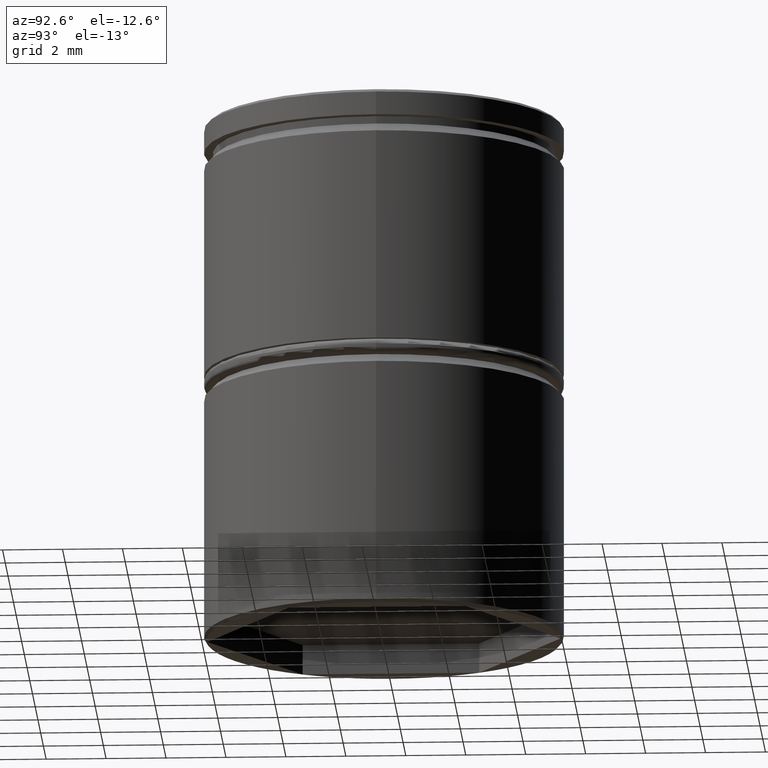
[diagram: clean part render]
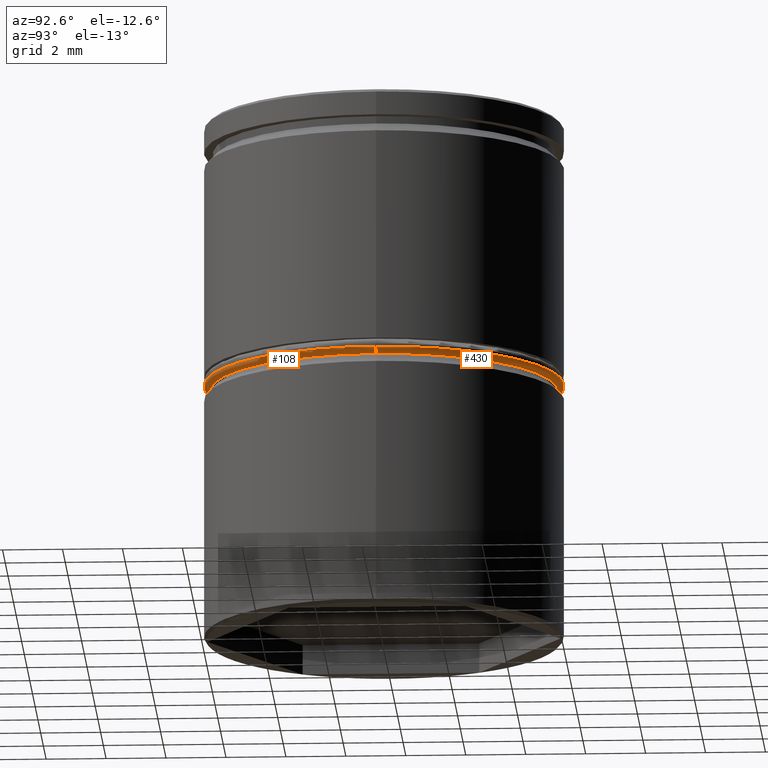
[diagram: same view with one multi-face feature highlighted, each face labeled with its STEP entity id]
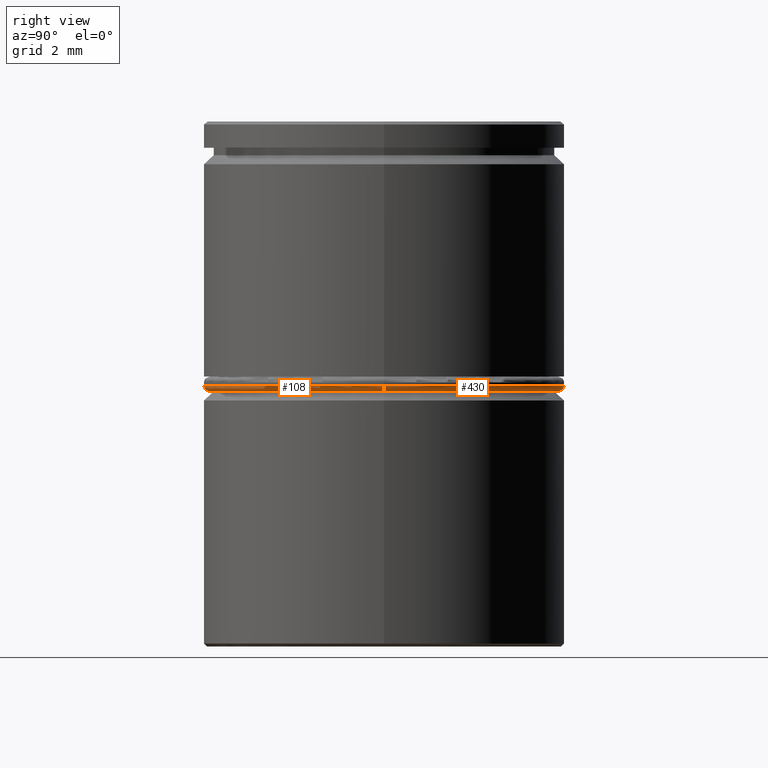
[diagram: same view with one multi-face feature highlighted, each face labeled with its STEP entity id]
A machine part, auxiliary view. The highlighted faces form ONE feature: a constant-radius fillet chain: 2 tangent blend faces with common blend radius 0.2 mm. The faces share edges in the B-rep.
A second angle (right view) of the same feature is appended — it is thin or edge-on in the first view.
Their STEP definitions:
[1] entity #430 (Torus):
#10 = CIRCLE ( 'NONE', #310, 0.1999999999999996503 ) ;
#13 = CARTESIAN_POINT ( 'NONE',  ( 0.000000000000000000, 0.000000000000000000, -8.800000000000002487 ) ) ;
#19 = ORIENTED_EDGE ( 'NONE', *, *, #631, .F. ) ;
#27 = AXIS2_PLACEMENT_3D ( 'NONE', #13, #400, #337 ) ;
#98 = EDGE_LOOP ( 'NONE', ( #19, #275, #368, #883 ) ) ;
#105 = FACE_OUTER_BOUND ( 'NONE', #98, .T. ) ;
#167 = CARTESIAN_POINT ( 'NONE',  ( 5.800000000000001599, 0.000000000000000000, -9.000000000000001776 ) ) ;
#275 = ORIENTED_EDGE ( 'NONE', *, *, #761, .T. ) ;
#280 = CARTESIAN_POINT ( 'NONE',  ( 6.000000000000000888, 0.000000000000000000, -8.800000000000002487 ) ) ;
#286 = CIRCLE ( 'NONE', #27, 6.000000000000000888 ) ;
#289 = DIRECTION ( 'NONE',  ( 1.000000000000000000, 0.000000000000000000, 0.000000000000000000 ) ) ;
#302 = CIRCLE ( 'NONE', #410, 5.800000000000001599 ) ;
#310 = AXIS2_PLACEMENT_3D ( 'NONE', #646, #502, #574 ) ;
#319 = CARTESIAN_POINT ( 'NONE',  ( 0.000000000000000000, 0.000000000000000000, -9.000000000000001776 ) ) ;
#331 = VERTEX_POINT ( 'NONE', #167 ) ;
#337 = DIRECTION ( 'NONE',  ( 1.000000000000000000, 0.000000000000000000, 0.000000000000000000 ) ) ;
#368 = ORIENTED_EDGE ( 'NONE', *, *, #389, .F. ) ;
#389 = EDGE_CURVE ( 'NONE', #496, #752, #286, .T. ) ;
#390 = AXIS2_PLACEMENT_3D ( 'NONE', #756, #815, #289 ) ;
#391 = VERTEX_POINT ( 'NONE', #966 ) ;
#400 = DIRECTION ( 'NONE',  ( 0.000000000000000000, 0.000000000000000000, 1.000000000000000000 ) ) ;
#403 = CIRCLE ( 'NONE', #994, 0.2000000000000005107 ) ;
#410 = AXIS2_PLACEMENT_3D ( 'NONE', #319, #634, #950 ) ;
#430 = ADVANCED_FACE ( 'NONE', ( #105 ), #643, .T. ) ;
#496 = VERTEX_POINT ( 'NONE', #280 ) ;
#502 = DIRECTION ( 'NONE',  ( 1.224646799147353207E-16, 1.000000000000000000, -0.000000000000000000 ) ) ;
#537 = DIRECTION ( 'NONE',  ( 0.000000000000000000, -1.000000000000000000, 0.000000000000000000 ) ) ;
#574 = DIRECTION ( 'NONE',  ( -1.000000000000000000, 1.224646799147353454E-16, 0.000000000000000000 ) ) ;
#631 = EDGE_CURVE ( 'NONE', #391, #331, #302, .T. ) ;
#634 = DIRECTION ( 'NONE',  ( -0.000000000000000000, -0.000000000000000000, -1.000000000000000000 ) ) ;
#643 = TOROIDAL_SURFACE ( 'NONE', #390, 5.800000000000001599, 0.2000000000000000111 ) ;
#646 = CARTESIAN_POINT ( 'NONE',  ( -5.800000000000001599, 7.102951435054649637E-16, -8.800000000000002487 ) ) ;
#752 = VERTEX_POINT ( 'NONE', #798 ) ;
#756 = CARTESIAN_POINT ( 'NONE',  ( 0.000000000000000000, 0.000000000000000000, -8.800000000000002487 ) ) ;
#761 = EDGE_CURVE ( 'NONE', #391, #752, #10, .T. ) ;
#798 = CARTESIAN_POINT ( 'NONE',  ( -6.000000000000000888, 7.347880794884120722E-16, -8.800000000000002487 ) ) ;
#815 = DIRECTION ( 'NONE',  ( 0.000000000000000000, 0.000000000000000000, 1.000000000000000000 ) ) ;
#855 = DIRECTION ( 'NONE',  ( 0.000000000000000000, 0.000000000000000000, -1.000000000000000000 ) ) ;
#883 = ORIENTED_EDGE ( 'NONE', *, *, #981, .F. ) ;
#936 = CARTESIAN_POINT ( 'NONE',  ( 5.800000000000001599, 0.000000000000000000, -8.800000000000002487 ) ) ;
#950 = DIRECTION ( 'NONE',  ( 1.000000000000000000, 0.000000000000000000, 0.000000000000000000 ) ) ;
#966 = CARTESIAN_POINT ( 'NONE',  ( -5.800000000000001599, 7.225416114969385180E-16, -9.000000000000001776 ) ) ;
#981 = EDGE_CURVE ( 'NONE', #331, #496, #403, .T. ) ;
#994 = AXIS2_PLACEMENT_3D ( 'NONE', #936, #537, #855 ) ;
[2] entity #108 (Torus):
#10 = CIRCLE ( 'NONE', #310, 0.1999999999999996503 ) ;
#101 = DIRECTION ( 'NONE',  ( 1.000000000000000000, 0.000000000000000000, 0.000000000000000000 ) ) ;
#108 = ADVANCED_FACE ( 'NONE', ( #672 ), #681, .T. ) ;
#167 = CARTESIAN_POINT ( 'NONE',  ( 5.800000000000001599, 0.000000000000000000, -9.000000000000001776 ) ) ;
#265 = CIRCLE ( 'NONE', #697, 6.000000000000000888 ) ;
#280 = CARTESIAN_POINT ( 'NONE',  ( 6.000000000000000888, 0.000000000000000000, -8.800000000000002487 ) ) ;
#310 = AXIS2_PLACEMENT_3D ( 'NONE', #646, #502, #574 ) ;
#331 = VERTEX_POINT ( 'NONE', #167 ) ;
#340 = EDGE_CURVE ( 'NONE', #331, #391, #365, .T. ) ;
#350 = DIRECTION ( 'NONE',  ( 1.000000000000000000, 0.000000000000000000, 0.000000000000000000 ) ) ;
#359 = ORIENTED_EDGE ( 'NONE', *, *, #340, .F. ) ;
#365 = CIRCLE ( 'NONE', #892, 5.800000000000001599 ) ;
#391 = VERTEX_POINT ( 'NONE', #966 ) ;
#403 = CIRCLE ( 'NONE', #994, 0.2000000000000005107 ) ;
#422 = DIRECTION ( 'NONE',  ( 0.000000000000000000, 0.000000000000000000, 1.000000000000000000 ) ) ;
#496 = VERTEX_POINT ( 'NONE', #280 ) ;
#502 = DIRECTION ( 'NONE',  ( 1.224646799147353207E-16, 1.000000000000000000, -0.000000000000000000 ) ) ;
#537 = DIRECTION ( 'NONE',  ( 0.000000000000000000, -1.000000000000000000, 0.000000000000000000 ) ) ;
#574 = DIRECTION ( 'NONE',  ( -1.000000000000000000, 1.224646799147353454E-16, 0.000000000000000000 ) ) ;
#582 = CARTESIAN_POINT ( 'NONE',  ( 0.000000000000000000, 0.000000000000000000, -9.000000000000001776 ) ) ;
#589 = ORIENTED_EDGE ( 'NONE', *, *, #761, .F. ) ;
#646 = CARTESIAN_POINT ( 'NONE',  ( -5.800000000000001599, 7.102951435054649637E-16, -8.800000000000002487 ) ) ;
#662 = DIRECTION ( 'NONE',  ( 0.000000000000000000, 0.000000000000000000, 1.000000000000000000 ) ) ;
#665 = CARTESIAN_POINT ( 'NONE',  ( 0.000000000000000000, 0.000000000000000000, -8.800000000000002487 ) ) ;
#672 = FACE_OUTER_BOUND ( 'NONE', #674, .T. ) ;
#674 = EDGE_LOOP ( 'NONE', ( #589, #359, #781, #834 ) ) ;
#681 = TOROIDAL_SURFACE ( 'NONE', #929, 5.800000000000001599, 0.2000000000000000111 ) ;
#697 = AXIS2_PLACEMENT_3D ( 'NONE', #740, #662, #350 ) ;
#740 = CARTESIAN_POINT ( 'NONE',  ( 0.000000000000000000, 0.000000000000000000, -8.800000000000002487 ) ) ;
#741 = EDGE_CURVE ( 'NONE', #752, #496, #265, .T. ) ;
#742 = DIRECTION ( 'NONE',  ( 1.000000000000000000, 0.000000000000000000, 0.000000000000000000 ) ) ;
#752 = VERTEX_POINT ( 'NONE', #798 ) ;
#761 = EDGE_CURVE ( 'NONE', #391, #752, #10, .T. ) ;
#781 = ORIENTED_EDGE ( 'NONE', *, *, #981, .T. ) ;
#798 = CARTESIAN_POINT ( 'NONE',  ( -6.000000000000000888, 7.347880794884120722E-16, -8.800000000000002487 ) ) ;
#834 = ORIENTED_EDGE ( 'NONE', *, *, #741, .F. ) ;
#855 = DIRECTION ( 'NONE',  ( 0.000000000000000000, 0.000000000000000000, -1.000000000000000000 ) ) ;
#892 = AXIS2_PLACEMENT_3D ( 'NONE', #582, #894, #101 ) ;
#894 = DIRECTION ( 'NONE',  ( -0.000000000000000000, -0.000000000000000000, -1.000000000000000000 ) ) ;
#929 = AXIS2_PLACEMENT_3D ( 'NONE', #665, #422, #742 ) ;
#936 = CARTESIAN_POINT ( 'NONE',  ( 5.800000000000001599, 0.000000000000000000, -8.800000000000002487 ) ) ;
#966 = CARTESIAN_POINT ( 'NONE',  ( -5.800000000000001599, 7.225416114969385180E-16, -9.000000000000001776 ) ) ;
#981 = EDGE_CURVE ( 'NONE', #331, #496, #403, .T. ) ;
#994 = AXIS2_PLACEMENT_3D ( 'NONE', #936, #537, #855 ) ;